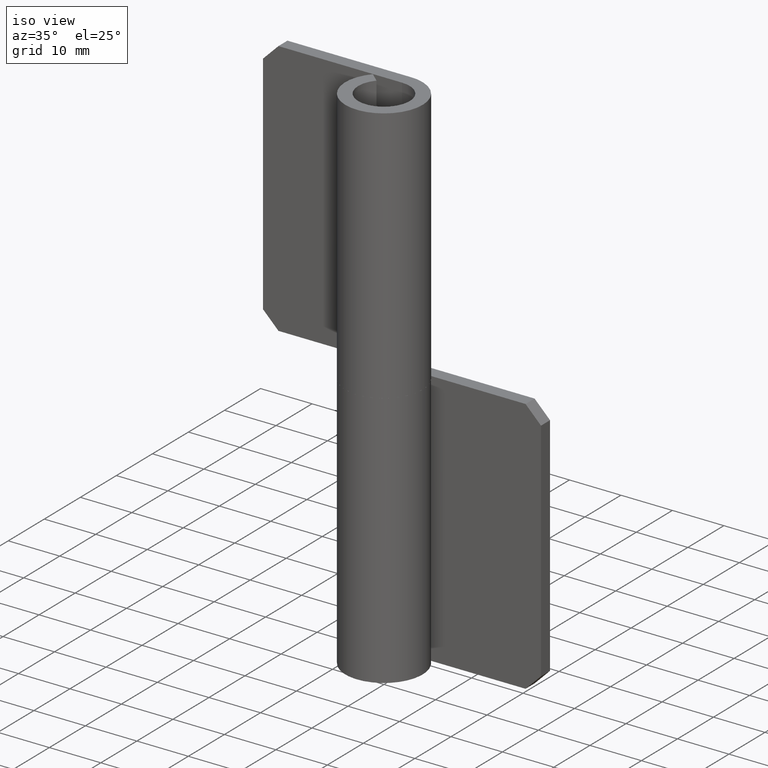
[diagram: clean part render]
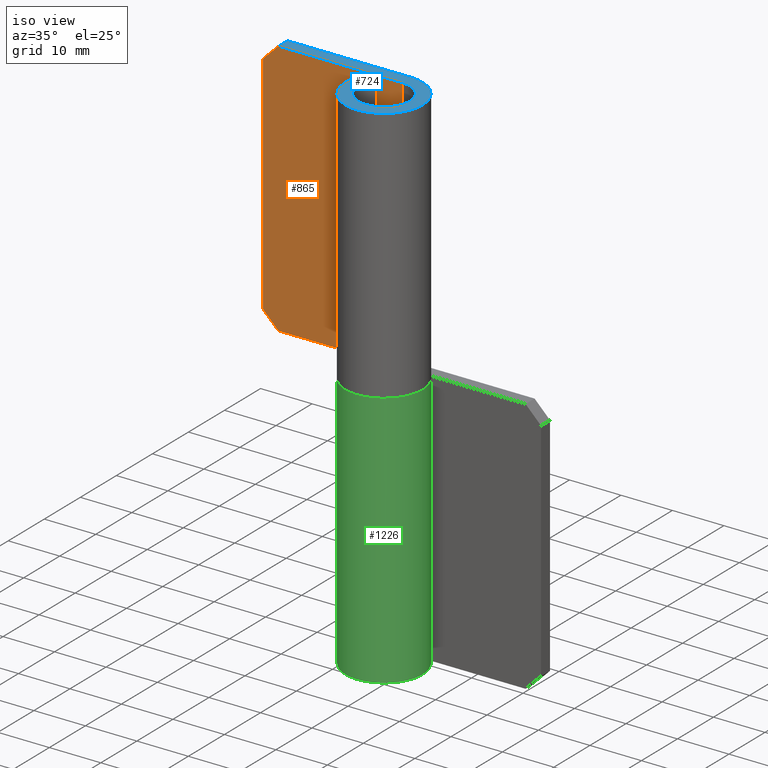
[diagram: same view with three faces highlighted in distinct colors, each labeled with its STEP entity id]
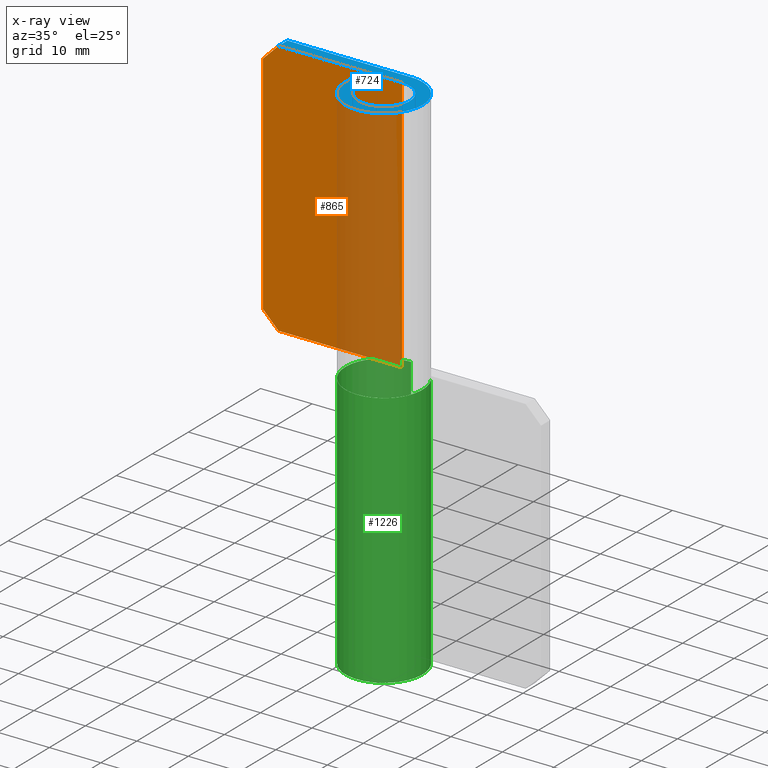
[diagram: x-ray of the same camera — body ghosted, the three highlighted faces saturated]
A machine part, iso view with three faces highlighted in distinct colors.
The next image is the same camera in x-ray (body ghosted, the three faces saturated) — at least one of them is partly hidden behind the body in this view.
Their STEP definitions:

[orange] entity #865 — the highlighted face is a freeform B-spline surface patch.
#597=CARTESIAN_POINT('',(-27.0,5.0,97.0));
#598=VERTEX_POINT('',#597);
#604=CARTESIAN_POINT('',(-24.0,5.0,100.0));
#605=VERTEX_POINT('',#604);
#606=CARTESIAN_POINT('',(-24.0,5.0,100.0));
#607=CARTESIAN_POINT('',(-27.0,5.0,97.0));
#608=QUASI_UNIFORM_CURVE('',1,(#606,#607),.UNSPECIFIED.,.F.,.U.);
#609=EDGE_CURVE('',#605,#598,#608,.T.);
#633=CARTESIAN_POINT('',(-24.0,5.0,50.0));
#634=VERTEX_POINT('',#633);
#640=CARTESIAN_POINT('',(-27.0,5.0,53.0));
#641=VERTEX_POINT('',#640);
#642=CARTESIAN_POINT('',(-27.0,5.0,53.0));
#643=CARTESIAN_POINT('',(-24.0,5.0,50.0));
#644=QUASI_UNIFORM_CURVE('',1,(#642,#643),.UNSPECIFIED.,.F.,.U.);
#645=EDGE_CURVE('',#641,#634,#644,.T.);
#668=CARTESIAN_POINT('',(0.0,5.0,100.0));
#669=VERTEX_POINT('',#668);
#670=CARTESIAN_POINT('',(-24.0,5.0,100.0));
#671=CARTESIAN_POINT('',(0.0,5.0,100.0));
#672=QUASI_UNIFORM_CURVE('',1,(#670,#671),.UNSPECIFIED.,.F.,.U.);
#673=EDGE_CURVE('',#605,#669,#672,.T.);
#730=CARTESIAN_POINT('',(0.0,5.0,50.0));
#731=VERTEX_POINT('',#730);
#732=CARTESIAN_POINT('',(-24.0,5.0,50.0));
#733=CARTESIAN_POINT('',(0.0,5.0,50.0));
#734=QUASI_UNIFORM_CURVE('',1,(#732,#733),.UNSPECIFIED.,.F.,.U.);
#735=EDGE_CURVE('',#634,#731,#734,.T.);
#838=CARTESIAN_POINT('',(0.0,5.0,50.0));
#839=CARTESIAN_POINT('',(0.0,5.0,100.0));
#840=QUASI_UNIFORM_CURVE('',1,(#838,#839),.UNSPECIFIED.,.F.,.U.);
#841=EDGE_CURVE('',#731,#669,#840,.T.);
#848=CARTESIAN_POINT('',(-28.348649947668761,5.0,102.497499903090300));
#849=CARTESIAN_POINT('',(-28.348649947668761,5.0,47.502498755805192));
#850=CARTESIAN_POINT('',(1.348650671865194,5.0,102.497499903090300));
#851=CARTESIAN_POINT('',(1.348650671865194,5.0,47.502498755805192));
#852=B_SPLINE_SURFACE_WITH_KNOTS('',1,1,((#848,#850),(#849,#851)),.UNSPECIFIED.,.F.,.F.,.U.,(2,2),(2,2),(0.0,54.995001147285109),(0.0,29.697300619533959),.UNSPECIFIED.);
#853=CARTESIAN_POINT('',(-27.0,5.0,53.0));
#854=CARTESIAN_POINT('',(-27.0,5.0,97.0));
#855=QUASI_UNIFORM_CURVE('',1,(#853,#854),.UNSPECIFIED.,.F.,.U.);
#856=EDGE_CURVE('',#641,#598,#855,.T.);
#857=ORIENTED_EDGE('',*,*,#856,.F.);
#858=ORIENTED_EDGE('',*,*,#645,.T.);
#859=ORIENTED_EDGE('',*,*,#735,.T.);
#860=ORIENTED_EDGE('',*,*,#841,.T.);
#861=ORIENTED_EDGE('',*,*,#673,.F.);
#862=ORIENTED_EDGE('',*,*,#609,.T.);
#863=EDGE_LOOP('',(#857,#858,#859,#860,#861,#862));
#864=FACE_OUTER_BOUND('',#863,.T.);
#865=ADVANCED_FACE('',(#864),#852,.T.);

[blue] entity #724 — the highlighted face is a freeform B-spline surface patch.
#590=CARTESIAN_POINT('',(-24.0,7.500000000000000,100.0));
#591=VERTEX_POINT('',#590);
#604=CARTESIAN_POINT('',(-24.0,5.0,100.0));
#605=VERTEX_POINT('',#604);
#611=CARTESIAN_POINT('',(-24.0,7.500000000000000,100.0));
#612=CARTESIAN_POINT('',(-24.0,5.0,100.0));
#613=QUASI_UNIFORM_CURVE('',1,(#611,#612),.UNSPECIFIED.,.F.,.U.);
#614=EDGE_CURVE('',#591,#605,#613,.T.);
#655=CARTESIAN_POINT('',(-25.572769545652221,8.248511978947063,100.0));
#656=CARTESIAN_POINT('',(9.059649402806594,8.248511978947063,100.0));
#657=CARTESIAN_POINT('',(-25.572769545652221,-8.233737763621830,100.0));
#658=CARTESIAN_POINT('',(9.059649402806594,-8.233737763621830,100.0));
#659=B_SPLINE_SURFACE_WITH_KNOTS('',1,1,((#655,#657),(#656,#658)),.UNSPECIFIED.,.F.,.F.,.U.,(2,2),(2,2),(0.0,34.632418948458813),(0.0,16.482249742568889),.UNSPECIFIED.);
#660=CARTESIAN_POINT('',(0.0,7.500000000000000,100.0));
#661=VERTEX_POINT('',#660);
#662=CARTESIAN_POINT('',(0.0,7.500000000000000,100.0));
#663=CARTESIAN_POINT('',(-24.0,7.500000000000000,100.0));
#664=QUASI_UNIFORM_CURVE('',1,(#662,#663),.UNSPECIFIED.,.F.,.U.);
#665=EDGE_CURVE('',#661,#591,#664,.T.);
#666=ORIENTED_EDGE('',*,*,#665,.T.);
#667=ORIENTED_EDGE('',*,*,#614,.T.);
#668=CARTESIAN_POINT('',(0.0,5.0,100.0));
#669=VERTEX_POINT('',#668);
#670=CARTESIAN_POINT('',(-24.0,5.0,100.0));
#671=CARTESIAN_POINT('',(0.0,5.0,100.0));
#672=QUASI_UNIFORM_CURVE('',1,(#670,#671),.UNSPECIFIED.,.F.,.U.);
#673=EDGE_CURVE('',#605,#669,#672,.T.);
#674=ORIENTED_EDGE('',*,*,#673,.T.);
#675=CARTESIAN_POINT('',(-3.756327994198595,3.300000000000000,100.0));
#676=VERTEX_POINT('',#675);
#677=CARTESIAN_POINT('',(-3.756327994198590,3.299999999999999,100.0));
#678=CARTESIAN_POINT('',(-6.420279709255414,0.267673817435970,100.0));
#679=CARTESIAN_POINT('',(-4.017981263228801,-2.975874084759348,100.0));
#680=CARTESIAN_POINT('',(-1.615682817202190,-6.219421986954663,100.0));
#681=CARTESIAN_POINT('',(2.061552812808828,-4.555216789572151,100.0));
#682=CARTESIAN_POINT('',(5.738788442819847,-2.891011592189638,100.0));
#683=CARTESIAN_POINT('',(4.887539460089339,1.054494203905177,100.0));
#684=CARTESIAN_POINT('',(4.036290477358829,5.000000000000001,100.0));
#685=CARTESIAN_POINT('',(0.0,5.0,100.0));
#693=(BOUNDED_CURVE()B_SPLINE_CURVE(2,(#677,#678,#679,#680,#681,#682,#683,#684,#685),.UNSPECIFIED.,.F.,.U.)B_SPLINE_CURVE_WITH_KNOTS((3,2,2,2,3),(0.0,0.250000000000000,0.500000000000000,0.750000000000000,1.0),.UNSPECIFIED.)CURVE()GEOMETRIC_REPRESENTATION_ITEM()RATIONAL_B_SPLINE_CURVE((1.0,0.778106304042396,1.0,0.778106304042396,1.0,0.778106304042396,1.0,0.778106304042396,1.0))REPRESENTATION_ITEM(''));
#694=EDGE_CURVE('',#676,#669,#693,.T.);
#695=ORIENTED_EDGE('',*,*,#694,.F.);
#696=CARTESIAN_POINT('',(-5.634491991297890,4.950000000000000,100.0));
#697=VERTEX_POINT('',#696);
#698=CARTESIAN_POINT('',(-3.756327994198595,3.300000000000000,100.0));
#699=CARTESIAN_POINT('',(-5.634491991297890,4.950000000000000,100.0));
#700=QUASI_UNIFORM_CURVE('',1,(#698,#699),.UNSPECIFIED.,.F.,.U.);
#701=EDGE_CURVE('',#676,#697,#700,.T.);
#702=ORIENTED_EDGE('',*,*,#701,.T.);
#703=CARTESIAN_POINT('',(-5.634491991297886,4.949999999999998,100.0));
#704=CARTESIAN_POINT('',(-9.630419563883120,0.401510726153956,100.000000000000010));
#705=CARTESIAN_POINT('',(-6.026971894843201,-4.463811127139022,100.0));
#706=CARTESIAN_POINT('',(-2.423524225803285,-9.329132980431995,100.000000000000010));
#707=CARTESIAN_POINT('',(3.092329219213242,-6.832825184358225,100.0));
#708=CARTESIAN_POINT('',(8.608182664229769,-4.336517388284458,100.000000000000010));
#709=CARTESIAN_POINT('',(7.331309190134009,1.581741305857765,100.0));
#710=CARTESIAN_POINT('',(6.054435716038246,7.500000000000000,100.000000000000010));
#711=CARTESIAN_POINT('',(0.0,7.500000000000000,100.0));
#719=(BOUNDED_CURVE()B_SPLINE_CURVE(2,(#703,#704,#705,#706,#707,#708,#709,#710,#711),.UNSPECIFIED.,.F.,.U.)B_SPLINE_CURVE_WITH_KNOTS((3,2,2,2,3),(0.0,0.250000000000000,0.500000000000000,0.750000000000000,1.0),.UNSPECIFIED.)CURVE()GEOMETRIC_REPRESENTATION_ITEM()RATIONAL_B_SPLINE_CURVE((1.0,0.778106304042396,1.0,0.778106304042396,1.0,0.778106304042396,1.0,0.778106304042396,1.0))REPRESENTATION_ITEM(''));
#720=EDGE_CURVE('',#697,#661,#719,.T.);
#721=ORIENTED_EDGE('',*,*,#720,.T.);
#722=EDGE_LOOP('',(#666,#667,#674,#695,#702,#721));
#723=FACE_OUTER_BOUND('',#722,.T.);
#724=ADVANCED_FACE('',(#723),#659,.F.);

[green] entity #1226 — the highlighted face is a freeform B-spline surface patch.
#1051=CARTESIAN_POINT('',(-1.377682E-015,7.500000000000000,0.0));
#1052=VERTEX_POINT('',#1051);
#1087=CARTESIAN_POINT('',(5.634491991297880,4.950000000000000,0.0));
#1088=VERTEX_POINT('',#1087);
#1094=CARTESIAN_POINT('',(5.634491991297882,4.950000000000003,0.0));
#1095=CARTESIAN_POINT('',(9.630419563883120,0.401510726153962,0.0));
#1096=CARTESIAN_POINT('',(6.026971894843205,-4.463811127139017,0.0));
#1097=CARTESIAN_POINT('',(2.423524225803292,-9.329132980431998,0.0));
#1098=CARTESIAN_POINT('',(-3.092329219213242,-6.832825184358225,0.0));
#1099=CARTESIAN_POINT('',(-8.608182664229769,-4.336517388284458,0.0));
#1100=CARTESIAN_POINT('',(-7.331309190134009,1.581741305857765,0.0));
#1101=CARTESIAN_POINT('',(-6.054435716038245,7.500000000000002,0.0));
#1102=CARTESIAN_POINT('',(0.0,7.500000000000000,0.0));
#1110=(BOUNDED_CURVE()B_SPLINE_CURVE(2,(#1094,#1095,#1096,#1097,#1098,#1099,#1100,#1101,#1102),.UNSPECIFIED.,.F.,.U.)B_SPLINE_CURVE_WITH_KNOTS((3,2,2,2,3),(0.0,0.250000000000000,0.500000000000000,0.750000000000000,1.0),.UNSPECIFIED.)CURVE()GEOMETRIC_REPRESENTATION_ITEM()RATIONAL_B_SPLINE_CURVE((1.0,0.778106304042397,1.0,0.778106304042397,1.0,0.778106304042397,1.0,0.778106304042397,1.0))REPRESENTATION_ITEM(''));
#1111=EDGE_CURVE('',#1088,#1052,#1110,.T.);
#1129=CARTESIAN_POINT('',(-1.377682E-015,7.500000000000000,50.0));
#1130=VERTEX_POINT('',#1129);
#1136=CARTESIAN_POINT('',(5.634491991297880,4.950000000000000,50.0));
#1137=VERTEX_POINT('',#1136);
#1138=CARTESIAN_POINT('',(5.634491991297882,4.950000000000003,50.0));
#1139=CARTESIAN_POINT('',(9.630419563883120,0.401510726153962,50.0));
#1140=CARTESIAN_POINT('',(6.026971894843205,-4.463811127139017,50.0));
#1141=CARTESIAN_POINT('',(2.423524225803292,-9.329132980431998,50.0));
#1142=CARTESIAN_POINT('',(-3.092329219213242,-6.832825184358225,50.0));
#1143=CARTESIAN_POINT('',(-8.608182664229769,-4.336517388284458,50.0));
#1144=CARTESIAN_POINT('',(-7.331309190134009,1.581741305857765,50.0));
#1145=CARTESIAN_POINT('',(-6.054435716038245,7.500000000000002,50.0));
#1146=CARTESIAN_POINT('',(0.0,7.500000000000000,50.0));
#1154=(BOUNDED_CURVE()B_SPLINE_CURVE(2,(#1138,#1139,#1140,#1141,#1142,#1143,#1144,#1145,#1146),.UNSPECIFIED.,.F.,.U.)B_SPLINE_CURVE_WITH_KNOTS((3,2,2,2,3),(0.0,0.250000000000000,0.500000000000000,0.750000000000000,1.0),.UNSPECIFIED.)CURVE()GEOMETRIC_REPRESENTATION_ITEM()RATIONAL_B_SPLINE_CURVE((1.0,0.778106304042397,1.0,0.778106304042397,1.0,0.778106304042397,1.0,0.778106304042397,1.0))REPRESENTATION_ITEM(''));
#1155=EDGE_CURVE('',#1137,#1130,#1154,.T.);
#1186=CARTESIAN_POINT('',(0.196327112309058,7.497429937316677,51.250000000000007));
#1187=CARTESIAN_POINT('',(0.196327112309058,7.497429937316677,-1.281250000000007));
#1188=CARTESIAN_POINT('',(-5.984077185138465,7.659269519515512,51.250000000000000));
#1189=CARTESIAN_POINT('',(-5.984077185138465,7.659269519515512,-1.281250000000007));
#1190=CARTESIAN_POINT('',(-7.322220053399496,1.623297104535781,51.250000000000007));
#1191=CARTESIAN_POINT('',(-7.322220053399496,1.623297104535781,-1.281250000000007));
#1192=CARTESIAN_POINT('',(-8.660362921660527,-4.412675310443950,51.250000000000000));
#1193=CARTESIAN_POINT('',(-8.660362921660527,-4.412675310443950,-1.281250000000007));
#1194=CARTESIAN_POINT('',(-2.990618016939356,-6.877950557888425,51.250000000000007));
#1195=CARTESIAN_POINT('',(-2.990618016939356,-6.877950557888425,-1.281250000000007));
#1196=CARTESIAN_POINT('',(2.679126887781816,-9.343225805332901,51.250000000000000));
#1197=CARTESIAN_POINT('',(2.679126887781816,-9.343225805332901,-1.281250000000007));
#1198=CARTESIAN_POINT('',(6.180946414665110,-4.248046776936254,51.250000000000007));
#1199=CARTESIAN_POINT('',(6.180946414665110,-4.248046776936254,-1.281250000000007));
#1200=CARTESIAN_POINT('',(9.682765941548402,0.847132251460392,51.250000000000000));
#1201=CARTESIAN_POINT('',(9.682765941548402,0.847132251460392,-1.281250000000007));
#1202=CARTESIAN_POINT('',(5.349378368656367,5.256819482248873,51.250000000000007));
#1203=CARTESIAN_POINT('',(5.349378368656367,5.256819482248873,-1.281250000000007));
#1211=(BOUNDED_SURFACE()B_SPLINE_SURFACE(1,2,((#1186,#1188,#1190,#1192,#1194,#1196,#1198,#1200,#1202),(#1187,#1189,#1191,#1193,#1195,#1197,#1199,#1201,#1203)),.UNSPECIFIED.,.F.,.F.,.U.)B_SPLINE_SURFACE_WITH_KNOTS((2,2),(3,2,2,2,3),(0.0,52.531250000000007),(0.0,10.771100597307949,21.542201194615899,32.313301791923841,43.084402389231791),.UNSPECIFIED.)GEOMETRIC_REPRESENTATION_ITEM()RATIONAL_B_SPLINE_SURFACE(((1.0,0.771624583387720,1.0,0.771624583387720,1.0,0.771624583387720,1.0,0.771624583387720,1.0),(1.0,0.771624583387720,1.0,0.771624583387720,1.0,0.771624583387720,1.0,0.771624583387720,1.0)))REPRESENTATION_ITEM('')SURFACE());
#1212=ORIENTED_EDGE('',*,*,#1111,.F.);
#1213=CARTESIAN_POINT('',(5.634491991297880,4.950000000000000,50.0));
#1214=CARTESIAN_POINT('',(5.634491991297880,4.950000000000000,0.0));
#1215=QUASI_UNIFORM_CURVE('',1,(#1213,#1214),.UNSPECIFIED.,.F.,.U.);
#1216=EDGE_CURVE('',#1137,#1088,#1215,.T.);
#1217=ORIENTED_EDGE('',*,*,#1216,.F.);
#1218=ORIENTED_EDGE('',*,*,#1155,.T.);
#1219=CARTESIAN_POINT('',(-1.377682E-015,7.500000000000000,50.0));
#1220=CARTESIAN_POINT('',(-1.377682E-015,7.500000000000000,0.0));
#1221=QUASI_UNIFORM_CURVE('',1,(#1219,#1220),.UNSPECIFIED.,.F.,.U.);
#1222=EDGE_CURVE('',#1130,#1052,#1221,.T.);
#1223=ORIENTED_EDGE('',*,*,#1222,.T.);
#1224=EDGE_LOOP('',(#1212,#1217,#1218,#1223));
#1225=FACE_OUTER_BOUND('',#1224,.T.);
#1226=ADVANCED_FACE('',(#1225),#1211,.T.);